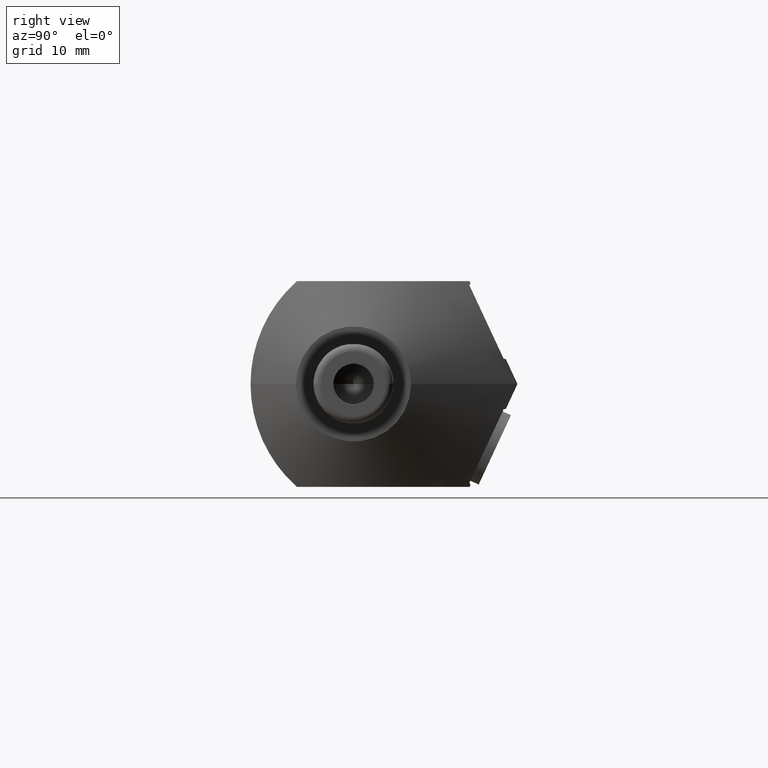
[diagram: clean part render]
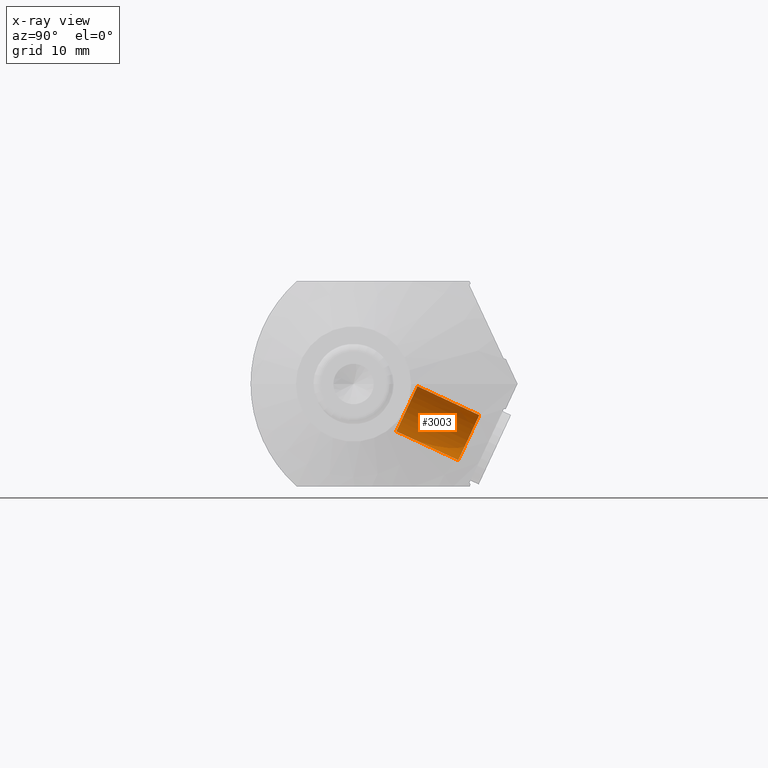
[diagram: x-ray — body ghosted, one internal face saturated and labeled with its STEP entity id]
A machine part, right view, then the same camera in x-ray: the body is ghosted and one INTERNAL B-rep face — a face not visible from any outside direction — is saturated and labeled: STEP entity #3003.
In plain terms, the highlighted cylindrical surface (edge-blend (fillet) strip) has radius 3.4544 mm, axis along (0, 0.9063, -0.4226).
Its self-contained STEP definition (entity closure, byte-faithful):
#2855=CARTESIAN_POINT('',(2.5E-1,4.427238215801E-1,-2.936450405254E-1));
#2856=DIRECTION('',(0.E0,9.063077870366E-1,-4.226182617407E-1));
#2857=DIRECTION('',(0.E0,-4.226182617407E-1,-9.063077870366E-1));
#2858=AXIS2_PLACEMENT_3D('',#2855,#2856,#2857);
#2863=CARTESIAN_POINT('',(2.5E-1,1.048311074258E-1,-1.360830802805E-1));
#2864=DIRECTION('',(0.E0,9.063077870366E-1,-4.226182617407E-1));
#2865=DIRECTION('',(0.E0,-4.226182617407E-1,-9.063077870366E-1));
#2866=AXIS2_PLACEMENT_3D('',#2863,#2864,#2865);
#2871=DIRECTION('',(0.E0,9.063077870366E-1,-4.226182617407E-1));
#2872=VECTOR('',#2871,3.728233597761E-1);
#2873=CARTESIAN_POINT('',(2.5E-1,4.735502382907E-2,-2.593409393175E-1));
#2874=LINE('',#2873,#2872);
#2886=DIRECTION('',(0.E0,9.063077870366E-1,-4.226182617407E-1));
#2887=VECTOR('',#2886,3.728233597761E-1);
#2888=CARTESIAN_POINT('',(2.5E-1,1.623071910225E-1,-1.282522124352E-2));
#2889=LINE('',#2888,#2887);
#2893=CARTESIAN_POINT('',(2.5E-1,4.735502382907E-2,-2.593409393175E-1));
#2894=CARTESIAN_POINT('',(2.5E-1,3.852477379833E-1,-4.169028995624E-1));
#2895=VERTEX_POINT('',#2893);
#2896=VERTEX_POINT('',#2894);
#2899=CARTESIAN_POINT('',(2.5E-1,1.623071910225E-1,-1.282522124352E-2));
#2900=CARTESIAN_POINT('',(2.5E-1,5.001999051768E-1,-1.703871814884E-1));
#2901=VERTEX_POINT('',#2899);
#2902=VERTEX_POINT('',#2900);
#2989=CARTESIAN_POINT('',(2.5E-1,8.307972053692E-2,-1.259402419987E-1));
#2990=DIRECTION('',(0.E0,9.063077870366E-1,-4.226182617407E-1));
#2991=DIRECTION('',(0.E0,-4.226182617407E-1,-9.063077870366E-1));
#2992=AXIS2_PLACEMENT_3D('',#2989,#2990,#2991);
#2993=CYLINDRICAL_SURFACE('',#2992,1.36E-1);
#2995=ORIENTED_EDGE('',*,*,#2994,.T.);
#2996=ORIENTED_EDGE('',*,*,#2984,.T.);
#2998=ORIENTED_EDGE('',*,*,#2997,.F.);
#3000=ORIENTED_EDGE('',*,*,#2999,.F.);
#3001=EDGE_LOOP('',(#2995,#2996,#2998,#3000));
#3002=FACE_OUTER_BOUND('',#3001,.F.);
#3003=ADVANCED_FACE('',(#3002),#2993,.T.);
#2859=CIRCLE('',#2858,1.36E-1);
#2867=CIRCLE('',#2866,1.36E-1);
#2984=EDGE_CURVE('',#2896,#2902,#2859,.T.);
#2994=EDGE_CURVE('',#2895,#2896,#2874,.T.);
#2997=EDGE_CURVE('',#2901,#2902,#2889,.T.);
#2999=EDGE_CURVE('',#2895,#2901,#2867,.T.);